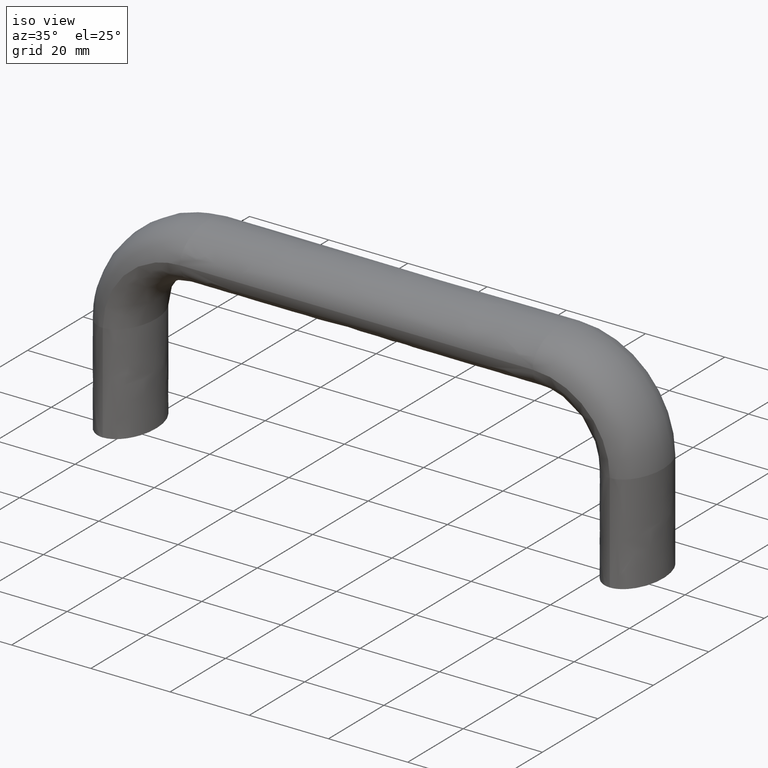
[diagram: clean part render]
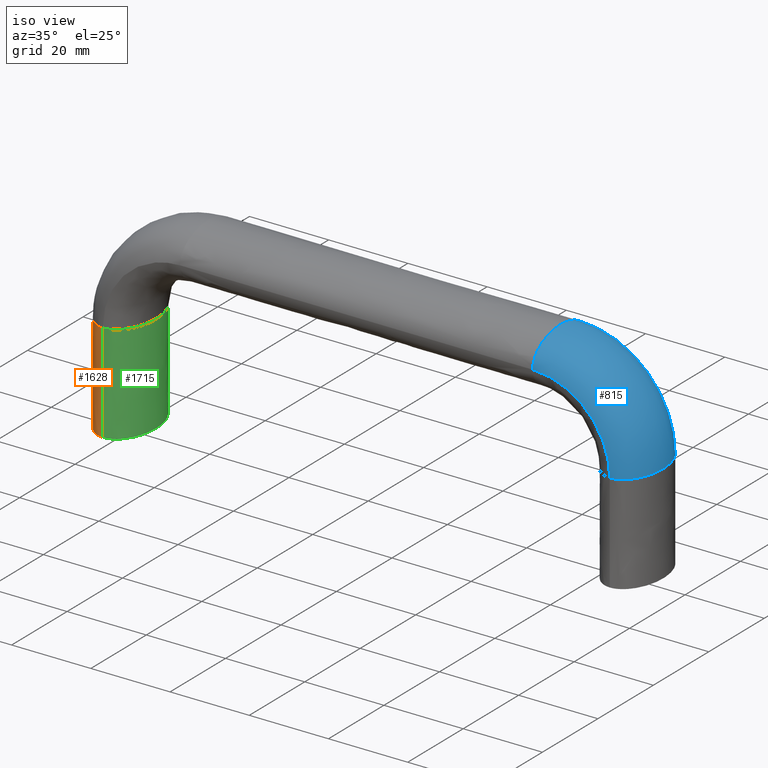
[diagram: same view with three faces highlighted in distinct colors, each labeled with its STEP entity id]
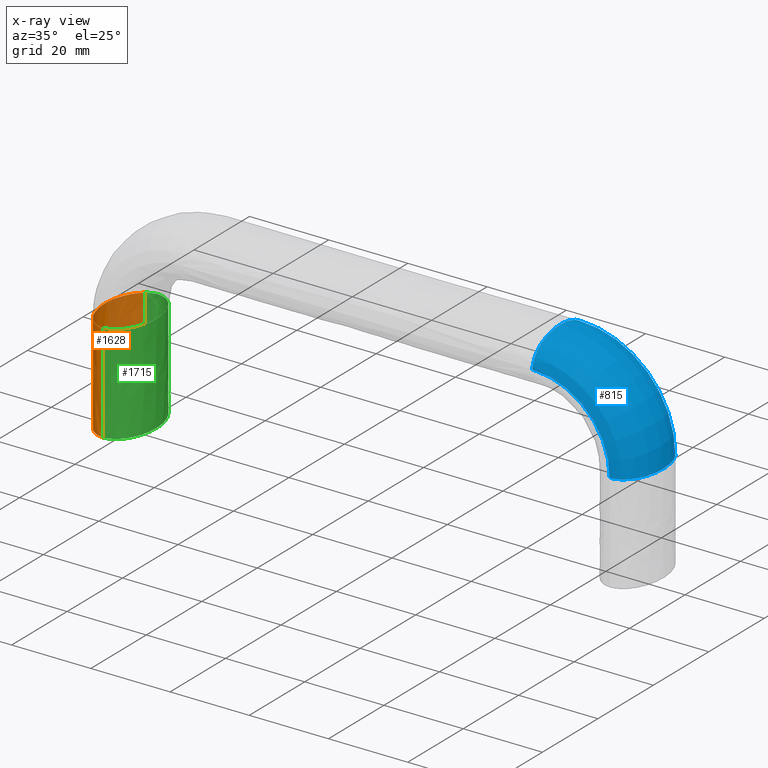
[diagram: x-ray of the same camera — body ghosted, the three highlighted faces saturated]
A machine part, iso view with three faces highlighted in distinct colors.
The next image is the same camera in x-ray (body ghosted, the three faces saturated) — at least one of them is partly hidden behind the body in this view.
Their STEP definitions:

[orange] entity #1628 — the highlighted face is a freeform B-spline surface patch.
#1406=CARTESIAN_POINT('',(-2.765141685643417,9.039503756692852,25.0));
#1407=VERTEX_POINT('',#1406);
#1415=CARTESIAN_POINT('',(3.747003E-014,-10.0,25.0));
#1416=VERTEX_POINT('',#1415);
#1417=CARTESIAN_POINT('',(-2.765141685643417,9.039503756692852,25.0));
#1418=CARTESIAN_POINT('',(-3.442842478045029,8.550381046452003,25.0));
#1419=CARTESIAN_POINT('',(-4.066750527716681,7.885596350320673,25.0));
#1420=CARTESIAN_POINT('',(-5.799474873463780,5.219866587632820,25.0));
#1421=CARTESIAN_POINT('',(-6.500000000000000,2.617993877991495,25.0));
#1422=CARTESIAN_POINT('',(-6.500000000000000,-2.617993877991495,25.0));
#1423=CARTESIAN_POINT('',(-5.799474873463780,-5.219866587632820,25.0));
#1424=CARTESIAN_POINT('',(-3.392913281961335,-8.922269036098131,25.0));
#1425=CARTESIAN_POINT('',(-1.701696020694470,-10.0,25.0));
#1426=CARTESIAN_POINT('',(0.0,-10.0,25.0));
#1427=B_SPLINE_CURVE_WITH_KNOTS('',3,(#1417,#1418,#1419,#1420,#1421,#1422,#1423,#1424,#1425,#1426),.UNSPECIFIED.,.F.,.U.,(4,2,2,2,4),(0.570000000013989,0.625000000000000,0.750000000000000,0.875000000000000,1.0),.UNSPECIFIED.);
#1428=EDGE_CURVE('',#1407,#1416,#1427,.T.);
#1548=CARTESIAN_POINT('',(-2.765141685384861,9.039503756879462,0.0));
#1549=CARTESIAN_POINT('',(-3.442842477727653,8.550381046790173,0.0));
#1550=CARTESIAN_POINT('',(-4.066750527582020,7.885596350527845,0.0));
#1551=CARTESIAN_POINT('',(-5.799474873463780,5.219866587632820,0.0));
#1552=CARTESIAN_POINT('',(-6.500000000000000,2.617993877991495,0.0));
#1553=CARTESIAN_POINT('',(-6.500000000000000,-2.617993877991495,0.0));
#1554=CARTESIAN_POINT('',(-5.799474873463780,-5.219866587632820,0.0));
#1555=CARTESIAN_POINT('',(-3.392913281961335,-8.922269036098131,0.0));
#1556=CARTESIAN_POINT('',(-1.701696020694470,-10.0,0.0));
#1557=CARTESIAN_POINT('',(0.0,-10.0,0.0));
#1558=CARTESIAN_POINT('',(-2.765141685384861,9.039503756879462,8.333333330654043));
#1559=CARTESIAN_POINT('',(-3.442842477727653,8.550381046790173,8.333333330577220));
#1560=CARTESIAN_POINT('',(-4.066750527582020,7.885596350527845,8.333333330508420));
#1561=CARTESIAN_POINT('',(-5.799474873463780,5.219866587632820,8.333333330322889));
#1562=CARTESIAN_POINT('',(-6.500000000000000,2.617993877991495,8.333333330251030));
#1563=CARTESIAN_POINT('',(-6.500000000000000,-2.617993877991495,8.333333330251030));
#1564=CARTESIAN_POINT('',(-5.799474873463780,-5.219866587632820,8.333333330322889));
#1565=CARTESIAN_POINT('',(-3.392913281961335,-8.922269036098131,8.333333330580571));
#1566=CARTESIAN_POINT('',(-1.701696020694470,-10.0,8.333333330771970));
#1567=CARTESIAN_POINT('',(0.0,-10.0,8.333333330977913));
#1568=CARTESIAN_POINT('',(-2.765255463481482,9.039503756879462,16.666666670234068));
#1569=CARTESIAN_POINT('',(-3.442957903478828,8.550381046790173,16.666666670336362));
#1570=CARTESIAN_POINT('',(-4.066867394460879,7.885596350527845,16.666666670427968));
#1571=CARTESIAN_POINT('',(-5.799595541806690,5.219866587632820,16.666666670674999));
#1572=CARTESIAN_POINT('',(-6.500122100290400,2.617993877991495,16.666666670770649));
#1573=CARTESIAN_POINT('',(-6.500122100290400,-2.617993877991495,16.666666670770649));
#1574=CARTESIAN_POINT('',(-5.799595541806690,-5.219866587632820,16.666666670674999));
#1575=CARTESIAN_POINT('',(-3.393028670493060,-8.922269036098131,16.666666670331900));
#1576=CARTESIAN_POINT('',(-1.701807325264690,-10.0,16.666666670077049));
#1577=CARTESIAN_POINT('',(-0.000106634018478,-10.0,16.666666669802851));
#1578=CARTESIAN_POINT('',(-2.765141685384861,9.039503756879462,25.0));
#1579=CARTESIAN_POINT('',(-3.442842477727653,8.550381046790173,25.0));
#1580=CARTESIAN_POINT('',(-4.066750527582020,7.885596350527845,25.0));
#1581=CARTESIAN_POINT('',(-5.799474873463780,5.219866587632820,25.0));
#1582=CARTESIAN_POINT('',(-6.500000000000000,2.617993877991495,25.0));
#1583=CARTESIAN_POINT('',(-6.500000000000000,-2.617993877991495,25.0));
#1584=CARTESIAN_POINT('',(-5.799474873463780,-5.219866587632820,25.0));
#1585=CARTESIAN_POINT('',(-3.392913281961335,-8.922269036098131,25.0));
#1586=CARTESIAN_POINT('',(-1.701696020694470,-10.0,25.0));
#1587=CARTESIAN_POINT('',(0.0,-10.0,25.0));
#1588=B_SPLINE_SURFACE_WITH_KNOTS('',3,3,((#1548,#1558,#1568,#1578),(#1549,#1559,#1569,#1579),(#1550,#1560,#1570,#1580),(#1551,#1561,#1571,#1581),(#1552,#1562,#1572,#1582),(#1553,#1563,#1573,#1583),(#1554,#1564,#1574,#1584),(#1555,#1565,#1575,#1585),(#1556,#1566,#1576,#1586),(#1557,#1567,#1577,#1587)),.UNSPECIFIED.,.F.,.F.,.U.,(4,2,2,2,4),(4,4),(0.0,3.385193623603746,11.078815495430430,18.772437367257119,26.466059239083808),(0.0,25.000000004368712),.UNSPECIFIED.);
#1589=ORIENTED_EDGE('',*,*,#1428,.F.);
#1590=CARTESIAN_POINT('',(-2.767718893953111,9.043070625830358,0.0));
#1591=VERTEX_POINT('',#1590);
#1592=CARTESIAN_POINT('',(-2.767718893953111,9.043070625830358,0.0));
#1593=CARTESIAN_POINT('',(-2.766859824516823,9.041881669451572,8.333333330654044));
#1594=CARTESIAN_POINT('',(-2.766114533176235,9.040692713071511,16.666666670234068));
#1595=CARTESIAN_POINT('',(-2.765141685643417,9.039503756692852,25.0));
#1596=B_SPLINE_CURVE_WITH_KNOTS('',3,(#1592,#1593,#1594,#1595),.UNSPECIFIED.,.F.,.U.,(4,4),(0.0,0.124837047863849),.UNSPECIFIED.);
#1597=EDGE_CURVE('',#1591,#1407,#1596,.T.);
#1598=ORIENTED_EDGE('',*,*,#1597,.F.);
#1599=CARTESIAN_POINT('',(3.252607E-016,-10.0,0.0));
#1600=VERTEX_POINT('',#1599);
#1601=CARTESIAN_POINT('',(-2.767718893953111,9.043070625830358,0.0));
#1602=CARTESIAN_POINT('',(-3.789574659081554,8.304902883637121,0.0));
#1603=CARTESIAN_POINT('',(-4.593843456444844,7.067814539892346,0.0));
#1604=CARTESIAN_POINT('',(-5.508528250208879,5.660889516472645,0.0));
#1605=CARTESIAN_POINT('',(-6.003269068346328,3.824138429711756,0.0));
#1606=CARTESIAN_POINT('',(-6.498383111718050,1.986001724805870,0.0));
#1607=CARTESIAN_POINT('',(-6.498549654176593,-0.002007286109192,0.0));
#1608=CARTESIAN_POINT('',(-6.498716322272312,-1.991516021929436,0.0));
#1609=CARTESIAN_POINT('',(-6.004283234472674,-3.828126606434021,0.0));
#1610=CARTESIAN_POINT('',(-5.509477153587659,-5.666122703084635,0.0));
#1611=CARTESIAN_POINT('',(-4.595717391098237,-7.071727548601292,0.0));
#1612=CARTESIAN_POINT('',(-3.681268301609613,-8.478392761853586,0.0));
#1613=CARTESIAN_POINT('',(-2.487293505025882,-9.239001272481852,0.0));
#1614=CARTESIAN_POINT('',(-1.292964223232608,-9.999835604013512,0.0));
#1615=CARTESIAN_POINT('',(3.252607E-016,-10.0,0.0));
#1616=B_SPLINE_CURVE_WITH_KNOTS('',2,(#1601,#1602,#1603,#1604,#1605,#1606,#1607,#1608,#1609,#1610,#1611,#1612,#1613,#1614,#1615),.UNSPECIFIED.,.F.,.U.,(3,2,2,2,2,2,2,3),(0.140006435623409,0.250000000000000,0.375000000000000,0.500000000000000,0.625000000000000,0.750000000000000,0.875000000000000,1.0),.UNSPECIFIED.);
#1617=EDGE_CURVE('',#1591,#1600,#1616,.T.);
#1618=ORIENTED_EDGE('',*,*,#1617,.T.);
#1619=CARTESIAN_POINT('',(0.0,-10.0,0.0));
#1620=CARTESIAN_POINT('',(0.0,-10.0,8.333333330977913));
#1621=CARTESIAN_POINT('',(-0.000106634018477,-10.0,16.666666669802851));
#1622=CARTESIAN_POINT('',(0.0,-10.0,25.0));
#1623=B_SPLINE_CURVE_WITH_KNOTS('',3,(#1619,#1620,#1621,#1622),.UNSPECIFIED.,.F.,.U.,(4,4),(0.0,0.124837047863849),.UNSPECIFIED.);
#1624=EDGE_CURVE('',#1600,#1416,#1623,.T.);
#1625=ORIENTED_EDGE('',*,*,#1624,.T.);
#1626=EDGE_LOOP('',(#1589,#1598,#1618,#1625));
#1627=FACE_OUTER_BOUND('',#1626,.T.);
#1628=ADVANCED_FACE('',(#1627),#1588,.T.);

[blue] entity #815 — the highlighted face is a freeform B-spline surface patch.
#457=CARTESIAN_POINT('',(130.765148685643200,9.039503756692850,25.0));
#458=VERTEX_POINT('',#457);
#459=CARTESIAN_POINT('',(128.000006999999810,-10.0,25.0));
#460=VERTEX_POINT('',#459);
#461=CARTESIAN_POINT('',(130.765148685643200,9.039503756692850,25.0));
#462=CARTESIAN_POINT('',(131.442849478044910,8.550381046451999,25.0));
#463=CARTESIAN_POINT('',(132.066757527716500,7.885596350320671,25.0));
#464=CARTESIAN_POINT('',(133.799481873463610,5.219866587632820,25.0));
#465=CARTESIAN_POINT('',(134.500007000000010,2.617993877991495,25.0));
#466=CARTESIAN_POINT('',(134.500007000000010,-2.617993877991495,25.0));
#467=CARTESIAN_POINT('',(133.799481873463610,-5.219866587632820,25.0));
#468=CARTESIAN_POINT('',(131.392920281961210,-8.922269036098131,25.0));
#469=CARTESIAN_POINT('',(129.701703020694200,-10.0,25.0));
#470=CARTESIAN_POINT('',(128.000006999999810,-10.0,25.0));
#471=B_SPLINE_CURVE_WITH_KNOTS('',3,(#461,#462,#463,#464,#465,#466,#467,#468,#469,#470),.UNSPECIFIED.,.F.,.U.,(4,2,2,2,4),(0.570000000013989,0.625000000000000,0.750000000000000,0.875000000000000,1.0),.UNSPECIFIED.);
#472=EDGE_CURVE('',#458,#460,#471,.T.);
#562=CARTESIAN_POINT('',(128.000006999999810,10.0,25.0));
#563=VERTEX_POINT('',#562);
#564=CARTESIAN_POINT('',(128.000006999999810,10.0,25.0));
#565=CARTESIAN_POINT('',(128.952956771779100,10.0,25.0));
#566=CARTESIAN_POINT('',(129.902620404600700,9.662023569585280,25.0));
#567=CARTESIAN_POINT('',(130.765148685643200,9.039503756692850,25.0));
#568=B_SPLINE_CURVE_WITH_KNOTS('',3,(#564,#565,#566,#567),.UNSPECIFIED.,.F.,.U.,(4,4),(0.500000000000000,0.570000000013990),.UNSPECIFIED.);
#569=EDGE_CURVE('',#563,#458,#568,.T.);
#603=CARTESIAN_POINT('',(124.870789612510190,8.755444309227862,25.0));
#604=VERTEX_POINT('',#603);
#618=CARTESIAN_POINT('',(124.870789612510190,8.755444309227862,25.0));
#619=CARTESIAN_POINT('',(125.826128193000600,9.558561397034485,25.0));
#620=CARTESIAN_POINT('',(126.910921546568700,10.0,25.0));
#621=CARTESIAN_POINT('',(128.000006999999810,10.0,25.0));
#622=B_SPLINE_CURVE_WITH_KNOTS('',3,(#618,#619,#620,#621),.UNSPECIFIED.,.F.,.U.,(4,4),(0.419999999986289,0.500000000000000),.UNSPECIFIED.);
#623=EDGE_CURVE('',#604,#563,#622,.T.);
#628=CARTESIAN_POINT('',(108.500007000000000,8.755444309434322,41.370790612755883));
#629=CARTESIAN_POINT('',(108.500007000000000,9.558561397185795,42.326129193372502));
#630=CARTESIAN_POINT('',(108.500007000000000,10.0,43.410922546755401));
#631=CARTESIAN_POINT('',(108.500007000000000,10.0,46.201704020694301));
#632=CARTESIAN_POINT('',(108.500007000000000,8.922269036098131,47.892921281961200));
#633=CARTESIAN_POINT('',(108.500007000000000,5.219866587632820,50.299482873463603));
#634=CARTESIAN_POINT('',(108.500007000000000,2.617993877991495,51.000007999999902));
#635=CARTESIAN_POINT('',(108.500007000000000,-2.617993877991495,51.000007999999902));
#636=CARTESIAN_POINT('',(108.500007000000000,-5.219866587632820,50.299482873463603));
#637=CARTESIAN_POINT('',(108.500007000000000,-8.922269036098131,47.892921281961200));
#638=CARTESIAN_POINT('',(108.500007000000000,-10.0,46.201704020694301));
#639=CARTESIAN_POINT('',(108.500007000000000,-10.0,44.500007999999852));
#640=CARTESIAN_POINT('',(110.643237786038500,8.755444309434322,41.361462487404737));
#641=CARTESIAN_POINT('',(110.768311226766600,9.558561397185795,42.316505935076087));
#642=CARTESIAN_POINT('',(110.910333084833000,10.0,43.400986049985583));
#643=CARTESIAN_POINT('',(111.275704385608410,10.0,46.191028352413603));
#644=CARTESIAN_POINT('',(111.497120124804000,8.922269036098131,47.881850823062599));
#645=CARTESIAN_POINT('',(111.812189611127810,5.219866587632820,50.287901282744599));
#646=CARTESIAN_POINT('',(111.903903107425190,2.617993877991495,50.988287623581812));
#647=CARTESIAN_POINT('',(111.903903107425190,-2.617993877991495,50.988287623581812));
#648=CARTESIAN_POINT('',(111.812189611127810,-5.219866587632820,50.287901282744599));
#649=CARTESIAN_POINT('',(111.497120124804000,-8.922269036098131,47.881850823053000));
#650=CARTESIAN_POINT('',(111.275704385608410,-10.0,46.191028352413603));
#651=CARTESIAN_POINT('',(111.052917007086800,-10.0,44.489783046055052));
#652=CARTESIAN_POINT('',(112.785024816611100,8.755444309434322,40.944694918080380));
#653=CARTESIAN_POINT('',(113.035082674914190,9.558561397185795,41.875168590091583));
#654=CARTESIAN_POINT('',(113.319025046922310,10.0,42.931727673305332));
#655=CARTESIAN_POINT('',(114.049506210898000,10.0,45.649872568246998));
#656=CARTESIAN_POINT('',(114.492178761621200,8.922269036098131,47.297071966642797));
#657=CARTESIAN_POINT('',(115.122091181823190,5.219866587632820,49.640997195244097));
#658=CARTESIAN_POINT('',(115.305452156013800,2.617993877991495,50.323289525999797));
#659=CARTESIAN_POINT('',(115.305452156013800,-2.617993877991495,50.323289525999797));
#660=CARTESIAN_POINT('',(115.122091181823190,-5.219866587632820,49.640997195244097));
#661=CARTESIAN_POINT('',(114.492178761621200,-8.922269036098131,47.297071966642797));
#662=CARTESIAN_POINT('',(114.049506210898000,-10.0,45.649872568246998));
#663=CARTESIAN_POINT('',(113.604090867010400,-10.0,43.992467144502079));
#664=CARTESIAN_POINT('',(116.744643744892600,8.755444309434322,39.304567056153523));
#665=CARTESIAN_POINT('',(117.225770380791800,9.558561397185795,40.139328906642490));
#666=CARTESIAN_POINT('',(117.772092896542700,10.0,41.087206575818250));
#667=CARTESIAN_POINT('',(119.177583399422800,10.0,43.525753447844252));
#668=CARTESIAN_POINT('',(120.029312501532600,8.922269036098131,45.003516074876998));
#669=CARTESIAN_POINT('',(121.241302581399000,5.219866587632820,47.106336842509513));
#670=CARTESIAN_POINT('',(121.594100326970210,2.617993877991495,47.718446164587199));
#671=CARTESIAN_POINT('',(121.594100326970210,-2.617993877991495,47.718446164587199));
#672=CARTESIAN_POINT('',(121.241302581399000,-5.219866587632820,47.106336842509513));
#673=CARTESIAN_POINT('',(120.029312501532600,-8.922269036098131,45.003516074876998));
#674=CARTESIAN_POINT('',(119.177583399422800,-10.0,43.525753447844252));
#675=CARTESIAN_POINT('',(118.320576995227600,-10.0,42.038834623438163));
#676=CARTESIAN_POINT('',(118.560617836546900,8.755444309434322,38.091171961062983));
#677=CARTESIAN_POINT('',(119.147718032307790,9.558561397185795,38.855124542666474));
#678=CARTESIAN_POINT('',(119.814374234678790,10.0,39.722597813020208));
#679=CARTESIAN_POINT('',(121.529439849049990,10.0,41.954293208727499));
#680=CARTESIAN_POINT('',(122.568771877825000,8.922269036098131,43.306703567755797));
#681=CARTESIAN_POINT('',(124.047716421851600,5.219866587632820,45.231151065126902));
#682=CARTESIAN_POINT('',(124.478221843971990,2.617993877991495,45.791337777728302));
#683=CARTESIAN_POINT('',(124.478221843971990,-2.617993877991495,45.791337777728302));
#684=CARTESIAN_POINT('',(124.047716421851600,-5.219866587632820,45.231151065126902));
#685=CARTESIAN_POINT('',(122.568771877807190,-8.922269036098131,43.306703567755797));
#686=CARTESIAN_POINT('',(121.529439849049990,-10.0,41.954293208727499));
#687=CARTESIAN_POINT('',(120.483668132970000,-10.0,40.593503333296233));
#688=CARTESIAN_POINT('',(121.591178961074110,8.755444309434322,35.060610836557963));
#689=CARTESIAN_POINT('',(122.355131542679500,9.558561397185795,35.647711032320750));
#690=CARTESIAN_POINT('',(123.222604813034910,10.0,36.314367234693300));
#691=CARTESIAN_POINT('',(125.454300208727600,10.0,38.029432849049947));
#692=CARTESIAN_POINT('',(126.806710567756000,8.922269036098131,39.068764877824698));
#693=CARTESIAN_POINT('',(128.731158065118190,5.219866587632820,40.547709421842548));
#694=CARTESIAN_POINT('',(129.291344777728400,2.617993877991495,40.978214843971763));
#695=CARTESIAN_POINT('',(129.291344777728400,-2.617993877991495,40.978214843971763));
#696=CARTESIAN_POINT('',(128.731158065118190,-5.219866587632820,40.547709421842548));
#697=CARTESIAN_POINT('',(126.806710567773610,-8.922269036098131,39.068764877824698));
#698=CARTESIAN_POINT('',(125.454300208727600,-10.0,38.029432849049947));
#699=CARTESIAN_POINT('',(124.093510333305200,-10.0,36.983661132978817));
#700=CARTESIAN_POINT('',(122.804574056211100,8.755444309434322,33.244636744786739));
#701=CARTESIAN_POINT('',(123.639335906701310,9.558561397185795,33.725763380683070));
#702=CARTESIAN_POINT('',(124.587213575877600,10.0,34.272085896433637));
#703=CARTESIAN_POINT('',(127.025760447932600,10.0,35.677576399299248));
#704=CARTESIAN_POINT('',(128.503523074956410,8.922269036098131,36.529305501418051));
#705=CARTESIAN_POINT('',(130.606343842562410,5.219866587632820,37.741295581257752));
#706=CARTESIAN_POINT('',(131.218453164631200,2.617993877991495,38.094093326811297));
#707=CARTESIAN_POINT('',(131.218453164631200,-2.617993877991495,38.094093326811297));
#708=CARTESIAN_POINT('',(130.606343842562410,-5.219866587632820,37.741295581257752));
#709=CARTESIAN_POINT('',(128.503523074956410,-8.922269036098131,36.529305501418051));
#710=CARTESIAN_POINT('',(127.025760447897200,-10.0,35.677576399299248));
#711=CARTESIAN_POINT('',(125.538841623491090,-10.0,34.820569995112912));
#712=CARTESIAN_POINT('',(124.444701918022200,8.755444309434322,29.285017816717879));
#713=CARTESIAN_POINT('',(125.375175590032200,9.558561397185795,29.535075675023869));
#714=CARTESIAN_POINT('',(126.431734673245600,10.0,29.819018047032110));
#715=CARTESIAN_POINT('',(129.149879568158210,10.0,30.549499211022251));
#716=CARTESIAN_POINT('',(130.797078966562990,8.922269036098131,30.992171761736849));
#717=CARTESIAN_POINT('',(133.141004195190590,5.219866587632820,31.622084181965501));
#718=CARTESIAN_POINT('',(133.823296525955190,2.617993877991495,31.805445156173700));
#719=CARTESIAN_POINT('',(133.823296525955190,-2.617993877991495,31.805445156173700));
#720=CARTESIAN_POINT('',(133.141004195190590,-5.219866587632820,31.622084181965501));
#721=CARTESIAN_POINT('',(130.797078966562990,-8.922269036098131,30.992171761736849));
#722=CARTESIAN_POINT('',(129.149879568193600,-10.0,30.549499211022251));
#723=CARTESIAN_POINT('',(127.492474144448710,-10.0,30.104083867125830));
#724=CARTESIAN_POINT('',(124.870764474806090,8.755444309434322,27.143280771262599));
#725=CARTESIAN_POINT('',(125.826100787056010,9.558561397185795,27.268354742729802));
#726=CARTESIAN_POINT('',(126.910891494318510,10.0,27.410377074515750));
#727=CARTESIAN_POINT('',(129.701665946343410,10.0,27.775749235925701));
#728=CARTESIAN_POINT('',(131.392878781409590,8.922269036098131,27.997165248423698));
#729=CARTESIAN_POINT('',(133.799433911713210,5.219866587632820,28.312234922407551));
#730=CARTESIAN_POINT('',(134.499957125285590,2.617993877991495,28.403948437624699));
#731=CARTESIAN_POINT('',(134.499957125285590,-2.617993877991495,28.403948437624699));
#732=CARTESIAN_POINT('',(133.799433911713210,-5.219866587632820,28.312234922407551));
#733=CARTESIAN_POINT('',(131.392878781409590,-8.922269036098131,27.997165248423698));
#734=CARTESIAN_POINT('',(129.701665946343410,-10.0,27.775749235925701));
#735=CARTESIAN_POINT('',(127.999974207303790,-10.0,27.552961332626950));
#736=CARTESIAN_POINT('',(124.870789612755800,8.755444309434322,25.0));
#737=CARTESIAN_POINT('',(125.826128193372400,9.558561397185795,25.0));
#738=CARTESIAN_POINT('',(126.910921546755400,10.0,25.0));
#739=CARTESIAN_POINT('',(129.701703020694200,10.0,25.0));
#740=CARTESIAN_POINT('',(131.392920281961210,8.922269036098131,25.0));
#741=CARTESIAN_POINT('',(133.799481873463610,5.219866587632820,25.0));
#742=CARTESIAN_POINT('',(134.500007000000010,2.617993877991495,25.0));
#743=CARTESIAN_POINT('',(134.500007000000010,-2.617993877991495,25.0));
#744=CARTESIAN_POINT('',(133.799481873463610,-5.219866587632820,25.0));
#745=CARTESIAN_POINT('',(131.392920281961210,-8.922269036098131,25.0));
#746=CARTESIAN_POINT('',(129.701703020694200,-10.0,25.0));
#747=CARTESIAN_POINT('',(128.000006999999810,-10.0,25.0));
#748=B_SPLINE_SURFACE_WITH_KNOTS('',3,3,((#628,#640,#652,#664,#676,#688,#700,#712,#724,#736),(#629,#641,#653,#665,#677,#689,#701,#713,#725,#737),(#630,#642,#654,#666,#678,#690,#702,#714,#726,#738),(#631,#643,#655,#667,#679,#691,#703,#715,#727,#739),(#632,#644,#656,#668,#680,#692,#704,#716,#728,#740),(#633,#645,#657,#669,#681,#693,#705,#717,#729,#741),(#634,#646,#658,#670,#682,#694,#706,#718,#730,#742),(#635,#647,#659,#671,#683,#695,#707,#719,#731,#743),(#636,#648,#660,#672,#684,#696,#708,#720,#732,#744),(#637,#649,#661,#673,#685,#697,#709,#721,#733,#745),(#638,#650,#662,#674,#686,#698,#710,#722,#734,#746),(#639,#651,#663,#675,#687,#699,#711,#723,#735,#747)),.UNSPECIFIED.,.F.,.F.,.U.,(4,2,2,2,2,4),(4,2,2,2,4),(0.0,4.923917860288095,12.617539516988240,20.311161173688390,28.004782830388539,35.698404487088688),(0.0,10.123008709118061,20.246017418236121,30.369026127354442,40.492034836472527),.UNSPECIFIED.);
#749=ORIENTED_EDGE('',*,*,#623,.F.);
#750=CARTESIAN_POINT('',(108.500007000000000,8.755444309227858,41.370790612510277));
#751=VERTEX_POINT('',#750);
#752=CARTESIAN_POINT('',(108.500007000000000,8.755444309227858,41.370790612510277));
#753=CARTESIAN_POINT('',(110.643237786038500,8.755444309434322,41.361462487404737));
#754=CARTESIAN_POINT('',(112.785024816611100,8.755444309434322,40.944694918080380));
#755=CARTESIAN_POINT('',(116.744643744892600,8.755444309434322,39.304567056153523));
#756=CARTESIAN_POINT('',(118.560617836546900,8.755444309434322,38.091171961062983));
#757=CARTESIAN_POINT('',(121.591178961074110,8.755444309434322,35.060610836557963));
#758=CARTESIAN_POINT('',(122.804574056211100,8.755444309434322,33.244636744786739));
#759=CARTESIAN_POINT('',(124.444701918022200,8.755444309434322,29.285017816717879));
#760=CARTESIAN_POINT('',(124.870764474806090,8.755444309434322,27.143280771262599));
#761=CARTESIAN_POINT('',(124.870789612510190,8.755444309227862,25.0));
#762=B_SPLINE_CURVE_WITH_KNOTS('',3,(#752,#753,#754,#755,#756,#757,#758,#759,#760,#761),.UNSPECIFIED.,.F.,.U.,(4,2,2,2,4),(0.722209962674838,0.760448210040166,0.798686457405494,0.836924704770823,0.875162952136151),.UNSPECIFIED.);
#763=EDGE_CURVE('',#751,#604,#762,.T.);
#764=ORIENTED_EDGE('',*,*,#763,.F.);
#765=CARTESIAN_POINT('',(108.500007000000000,10.0,44.500007999999852));
#766=VERTEX_POINT('',#765);
#767=CARTESIAN_POINT('',(108.500007000000000,8.755444309227858,41.370790612510277));
#768=CARTESIAN_POINT('',(108.500007000000000,9.558561397034483,42.326129193000668));
#769=CARTESIAN_POINT('',(108.500007000000000,10.0,43.410922546568749));
#770=CARTESIAN_POINT('',(108.500007000000000,10.0,44.500007999999852));
#771=B_SPLINE_CURVE_WITH_KNOTS('',3,(#767,#768,#769,#770),.UNSPECIFIED.,.F.,.U.,(4,4),(0.419999999986289,0.500000000000000),.UNSPECIFIED.);
#772=EDGE_CURVE('',#751,#766,#771,.T.);
#773=ORIENTED_EDGE('',*,*,#772,.T.);
#774=CARTESIAN_POINT('',(108.500007000000000,9.039503756692849,47.265149685643273));
#775=VERTEX_POINT('',#774);
#776=CARTESIAN_POINT('',(108.500007000000000,10.0,44.500007999999852));
#777=CARTESIAN_POINT('',(108.500007000000000,10.0,45.452957771779197));
#778=CARTESIAN_POINT('',(108.500007000000000,9.662023569585280,46.402621404600751));
#779=CARTESIAN_POINT('',(108.500007000000000,9.039503756692849,47.265149685643273));
#780=B_SPLINE_CURVE_WITH_KNOTS('',3,(#776,#777,#778,#779),.UNSPECIFIED.,.F.,.U.,(4,4),(0.500000000000000,0.570000000013990),.UNSPECIFIED.);
#781=EDGE_CURVE('',#766,#775,#780,.T.);
#782=ORIENTED_EDGE('',*,*,#781,.T.);
#783=CARTESIAN_POINT('',(108.500007000000000,-10.0,44.500007999999852));
#784=VERTEX_POINT('',#783);
#785=CARTESIAN_POINT('',(108.500007000000000,9.039503756692849,47.265149685643273));
#786=CARTESIAN_POINT('',(108.500007000000000,8.550381046451996,47.942850478044889));
#787=CARTESIAN_POINT('',(108.500007000000000,7.885596350320669,48.566758527716537));
#788=CARTESIAN_POINT('',(108.500007000000000,5.219866587632820,50.299482873463603));
#789=CARTESIAN_POINT('',(108.500007000000000,2.617993877991495,51.000007999999902));
#790=CARTESIAN_POINT('',(108.500007000000000,-2.617993877991495,51.000007999999902));
#791=CARTESIAN_POINT('',(108.500007000000000,-5.219866587632820,50.299482873463603));
#792=CARTESIAN_POINT('',(108.500007000000000,-8.922269036098131,47.892921281961200));
#793=CARTESIAN_POINT('',(108.500007000000000,-10.0,46.201704020694301));
#794=CARTESIAN_POINT('',(108.500007000000000,-10.0,44.500007999999852));
#795=B_SPLINE_CURVE_WITH_KNOTS('',3,(#785,#786,#787,#788,#789,#790,#791,#792,#793,#794),.UNSPECIFIED.,.F.,.U.,(4,2,2,2,4),(0.570000000013989,0.625000000000000,0.750000000000000,0.875000000000000,1.0),.UNSPECIFIED.);
#796=EDGE_CURVE('',#775,#784,#795,.T.);
#797=ORIENTED_EDGE('',*,*,#796,.T.);
#798=CARTESIAN_POINT('',(108.500007000000000,-10.0,44.500007999999852));
#799=CARTESIAN_POINT('',(111.052917007086800,-10.0,44.489783046055052));
#800=CARTESIAN_POINT('',(113.604090867010400,-10.0,43.992467144502079));
#801=CARTESIAN_POINT('',(118.320576995227600,-10.0,42.038834623438163));
#802=CARTESIAN_POINT('',(120.483668132970000,-10.0,40.593503333296233));
#803=CARTESIAN_POINT('',(124.093510333305200,-10.0,36.983661132978817));
#804=CARTESIAN_POINT('',(125.538841623491090,-10.0,34.820569995112912));
#805=CARTESIAN_POINT('',(127.492474144448710,-10.0,30.104083867125830));
#806=CARTESIAN_POINT('',(127.999974207303790,-10.0,27.552961332626950));
#807=CARTESIAN_POINT('',(128.000006999999810,-10.0,25.0));
#808=B_SPLINE_CURVE_WITH_KNOTS('',3,(#798,#799,#800,#801,#802,#803,#804,#805,#806,#807),.UNSPECIFIED.,.F.,.U.,(4,2,2,2,4),(0.722209962674838,0.760448210040166,0.798686457405494,0.836924704770823,0.875162952136151),.UNSPECIFIED.);
#809=EDGE_CURVE('',#784,#460,#808,.T.);
#810=ORIENTED_EDGE('',*,*,#809,.T.);
#811=ORIENTED_EDGE('',*,*,#472,.F.);
#812=ORIENTED_EDGE('',*,*,#569,.F.);
#813=EDGE_LOOP('',(#749,#764,#773,#782,#797,#810,#811,#812));
#814=FACE_OUTER_BOUND('',#813,.T.);
#815=ADVANCED_FACE('',(#814),#748,.T.);

[green] entity #1715 — the highlighted face is a freeform B-spline surface patch.
#1382=CARTESIAN_POINT('',(3.129217387489629,8.755444309227849,25.0));
#1383=VERTEX_POINT('',#1382);
#1397=CARTESIAN_POINT('',(0.0,10.0,25.0));
#1398=VERTEX_POINT('',#1397);
#1399=CARTESIAN_POINT('',(3.129217387489629,8.755444309227849,25.0));
#1400=CARTESIAN_POINT('',(2.173878806999225,9.558561397034476,25.0));
#1401=CARTESIAN_POINT('',(1.089085453431123,10.0,25.0));
#1402=CARTESIAN_POINT('',(0.0,10.0,25.0));
#1403=B_SPLINE_CURVE_WITH_KNOTS('',3,(#1399,#1400,#1401,#1402),.UNSPECIFIED.,.F.,.U.,(4,4),(0.419999999986289,0.500000000000000),.UNSPECIFIED.);
#1404=EDGE_CURVE('',#1383,#1398,#1403,.T.);
#1406=CARTESIAN_POINT('',(-2.765141685643417,9.039503756692852,25.0));
#1407=VERTEX_POINT('',#1406);
#1408=CARTESIAN_POINT('',(0.0,10.0,25.0));
#1409=CARTESIAN_POINT('',(-0.952949771779357,10.0,25.0));
#1410=CARTESIAN_POINT('',(-1.902613404600903,9.662023569585280,25.0));
#1411=CARTESIAN_POINT('',(-2.765141685643417,9.039503756692852,25.0));
#1412=B_SPLINE_CURVE_WITH_KNOTS('',3,(#1408,#1409,#1410,#1411),.UNSPECIFIED.,.F.,.U.,(4,4),(0.500000000000000,0.570000000013990),.UNSPECIFIED.);
#1413=EDGE_CURVE('',#1398,#1407,#1412,.T.);
#1415=CARTESIAN_POINT('',(3.747003E-014,-10.0,25.0));
#1416=VERTEX_POINT('',#1415);
#1531=CARTESIAN_POINT('',(0.0,-10.0,25.0));
#1532=CARTESIAN_POINT('',(1.701696020694470,-10.0,25.0));
#1533=CARTESIAN_POINT('',(3.392913281961335,-8.922269036098131,25.0));
#1534=CARTESIAN_POINT('',(5.799474873463780,-5.219866587632820,25.0));
#1535=CARTESIAN_POINT('',(6.500000000000000,-2.617993877991495,25.0));
#1536=CARTESIAN_POINT('',(6.500000000000000,2.617993877991495,25.0));
#1537=CARTESIAN_POINT('',(5.799474873463780,5.219866587632830,25.0));
#1538=CARTESIAN_POINT('',(4.163012991374101,7.737500252386177,25.0));
#1539=CARTESIAN_POINT('',(3.666595339143357,8.303690947229089,25.0));
#1540=CARTESIAN_POINT('',(3.129217387489629,8.755444309227849,25.0));
#1541=B_SPLINE_CURVE_WITH_KNOTS('',3,(#1531,#1532,#1533,#1534,#1535,#1536,#1537,#1538,#1539,#1540),.UNSPECIFIED.,.F.,.U.,(4,2,2,2,4),(0.0,0.125000000000000,0.250000000000000,0.375000000000000,0.419999999986289),.UNSPECIFIED.);
#1542=EDGE_CURVE('',#1416,#1383,#1541,.T.);
#1590=CARTESIAN_POINT('',(-2.767718893953111,9.043070625830358,0.0));
#1591=VERTEX_POINT('',#1590);
#1592=CARTESIAN_POINT('',(-2.767718893953111,9.043070625830358,0.0));
#1593=CARTESIAN_POINT('',(-2.766859824516823,9.041881669451572,8.333333330654044));
#1594=CARTESIAN_POINT('',(-2.766114533176235,9.040692713071511,16.666666670234068));
#1595=CARTESIAN_POINT('',(-2.765141685643417,9.039503756692852,25.0));
#1596=B_SPLINE_CURVE_WITH_KNOTS('',3,(#1592,#1593,#1594,#1595),.UNSPECIFIED.,.F.,.U.,(4,4),(0.0,0.124837047863849),.UNSPECIFIED.);
#1597=EDGE_CURVE('',#1591,#1407,#1596,.T.);
#1599=CARTESIAN_POINT('',(3.252607E-016,-10.0,0.0));
#1600=VERTEX_POINT('',#1599);
#1619=CARTESIAN_POINT('',(0.0,-10.0,0.0));
#1620=CARTESIAN_POINT('',(0.0,-10.0,8.333333330977913));
#1621=CARTESIAN_POINT('',(-0.000106634018477,-10.0,16.666666669802851));
#1622=CARTESIAN_POINT('',(0.0,-10.0,25.0));
#1623=B_SPLINE_CURVE_WITH_KNOTS('',3,(#1619,#1620,#1621,#1622),.UNSPECIFIED.,.F.,.U.,(4,4),(0.0,0.124837047863849),.UNSPECIFIED.);
#1624=EDGE_CURVE('',#1600,#1416,#1623,.T.);
#1629=CARTESIAN_POINT('',(0.0,-10.0,0.0));
#1630=CARTESIAN_POINT('',(1.701696020694470,-10.0,0.0));
#1631=CARTESIAN_POINT('',(3.392913281961335,-8.922269036098131,0.0));
#1632=CARTESIAN_POINT('',(5.799474873463780,-5.219866587632820,0.0));
#1633=CARTESIAN_POINT('',(6.500000000000000,-2.617993877991495,0.0));
#1634=CARTESIAN_POINT('',(6.500000000000000,2.617993877991495,0.0));
#1635=CARTESIAN_POINT('',(5.799474873463780,5.219866587632830,0.0));
#1636=CARTESIAN_POINT('',(3.392913281961330,8.922269036098131,0.0));
#1637=CARTESIAN_POINT('',(1.701696020694470,10.0,0.0));
#1638=CARTESIAN_POINT('',(-0.952949771588903,10.0,0.0));
#1639=CARTESIAN_POINT('',(-1.902613404221309,9.662023569720375,0.0));
#1640=CARTESIAN_POINT('',(-2.765141685384861,9.039503756879462,0.0));
#1641=CARTESIAN_POINT('',(0.0,-10.0,8.333333330977913));
#1642=CARTESIAN_POINT('',(1.701696020694470,-10.0,8.333333331183860));
#1643=CARTESIAN_POINT('',(3.392913281961335,-8.922269036098131,8.333333331401740));
#1644=CARTESIAN_POINT('',(5.799474873463780,-5.219866587632820,8.333333331725880));
#1645=CARTESIAN_POINT('',(6.500000000000000,-2.617993877991495,8.333333331822990));
#1646=CARTESIAN_POINT('',(6.500000000000000,2.617993877991495,8.333333331822990));
#1647=CARTESIAN_POINT('',(5.799474873463780,5.219866587632830,8.333333331725880));
#1648=CARTESIAN_POINT('',(3.392913281961330,8.922269036098131,8.333333331401740));
#1649=CARTESIAN_POINT('',(1.701696020694470,10.0,8.333333331183860));
#1650=CARTESIAN_POINT('',(-0.952949771588903,10.0,8.333333330862585));
#1651=CARTESIAN_POINT('',(-1.902613404221309,9.662023569720375,8.333333330751817));
#1652=CARTESIAN_POINT('',(-2.765141685384861,9.039503756879462,8.333333330654043));
#1653=CARTESIAN_POINT('',(-0.000106634018478,-10.0,16.666666669802851));
#1654=CARTESIAN_POINT('',(1.701594057227735,-10.0,16.666666669528649));
#1655=CARTESIAN_POINT('',(3.392816624426850,-8.922269036098131,16.666666669238548));
#1656=CARTESIAN_POINT('',(5.799386698030220,-5.219866587632820,16.666666668806950));
#1657=CARTESIAN_POINT('',(6.499914529665181,-2.617993877991495,16.666666668677649));
#1658=CARTESIAN_POINT('',(6.499914529665181,2.617993877991495,16.666666668677649));
#1659=CARTESIAN_POINT('',(5.799386698030220,5.219866587632830,16.666666668806950));
#1660=CARTESIAN_POINT('',(3.392816624426850,8.922269036098131,16.666666669238548));
#1661=CARTESIAN_POINT('',(1.701594057227735,10.0,16.666666669528649));
#1662=CARTESIAN_POINT('',(-0.953059021116360,10.0,16.666666669956399));
#1663=CARTESIAN_POINT('',(-1.902725085303044,9.662023569720375,16.666666670103879));
#1664=CARTESIAN_POINT('',(-2.765255463481482,9.039503756879462,16.666666670234068));
#1665=CARTESIAN_POINT('',(0.0,-10.0,25.0));
#1666=CARTESIAN_POINT('',(1.701696020694470,-10.0,25.0));
#1667=CARTESIAN_POINT('',(3.392913281961335,-8.922269036098131,25.0));
#1668=CARTESIAN_POINT('',(5.799474873463780,-5.219866587632820,25.0));
#1669=CARTESIAN_POINT('',(6.500000000000000,-2.617993877991495,25.0));
#1670=CARTESIAN_POINT('',(6.500000000000000,2.617993877991495,25.0));
#1671=CARTESIAN_POINT('',(5.799474873463780,5.219866587632830,25.0));
#1672=CARTESIAN_POINT('',(3.392913281961330,8.922269036098131,25.0));
#1673=CARTESIAN_POINT('',(1.701696020694470,10.0,25.0));
#1674=CARTESIAN_POINT('',(-0.952949771588903,10.0,25.0));
#1675=CARTESIAN_POINT('',(-1.902613404221309,9.662023569720375,25.0));
#1676=CARTESIAN_POINT('',(-2.765141685384861,9.039503756879462,25.0));
#1677=B_SPLINE_SURFACE_WITH_KNOTS('',3,3,((#1629,#1641,#1653,#1665),(#1630,#1642,#1654,#1666),(#1631,#1643,#1655,#1667),(#1632,#1644,#1656,#1668),(#1633,#1645,#1657,#1669),(#1634,#1646,#1658,#1670),(#1635,#1647,#1659,#1671),(#1636,#1648,#1660,#1672),(#1637,#1649,#1661,#1673),(#1638,#1650,#1662,#1674),(#1639,#1651,#1663,#1675),(#1640,#1652,#1664,#1676)),.UNSPECIFIED.,.F.,.F.,.U.,(4,2,2,2,2,4),(4,4),(0.0,7.693622043917650,15.387244087835301,23.080866131752948,30.774488175670601,35.082916520264483),(0.0,25.000000003826319),.UNSPECIFIED.);
#1678=ORIENTED_EDGE('',*,*,#1413,.F.);
#1679=ORIENTED_EDGE('',*,*,#1404,.F.);
#1680=ORIENTED_EDGE('',*,*,#1542,.F.);
#1681=ORIENTED_EDGE('',*,*,#1624,.F.);
#1682=CARTESIAN_POINT('',(-1.301043E-015,10.0,0.0));
#1683=VERTEX_POINT('',#1682);
#1684=CARTESIAN_POINT('',(5.827587E-016,-9.999999999999991,0.0));
#1685=CARTESIAN_POINT('',(1.293495947650843,-9.999801000622920,0.0));
#1686=CARTESIAN_POINT('',(2.487442310373089,-9.238795325112871,0.0));
#1687=CARTESIAN_POINT('',(3.682367494606962,-8.477165761672067,0.0));
#1688=CARTESIAN_POINT('',(4.596194077712559,-7.071067811865456,0.0));
#1689=CARTESIAN_POINT('',(5.510710038218062,-5.663909122344585,0.0));
#1690=CARTESIAN_POINT('',(6.005216961323355,-3.826834323650897,0.0));
#1691=CARTESIAN_POINT('',(6.500096933217217,-1.988373662603977,0.0));
#1692=CARTESIAN_POINT('',(6.500000000000003,-3.672735E-015,0.0));
#1693=CARTESIAN_POINT('',(6.499902993657782,1.989873662604707,0.0));
#1694=CARTESIAN_POINT('',(6.005216961323353,3.826834323650896,0.0));
#1695=CARTESIAN_POINT('',(5.510157745084252,5.665180760941928,0.0));
#1696=CARTESIAN_POINT('',(4.596194077712557,7.071067811865471,0.0));
#1697=CARTESIAN_POINT('',(3.681540929521299,8.478015443412405,0.0));
#1698=CARTESIAN_POINT('',(2.487442310373079,9.238795325112868,0.0));
#1699=CARTESIAN_POINT('',(1.292989169263922,9.999801078589059,0.0));
#1700=CARTESIAN_POINT('',(-1.409463E-015,9.999999999999996,0.0));
#1701=B_SPLINE_CURVE_WITH_KNOTS('',2,(#1684,#1685,#1686,#1687,#1688,#1689,#1690,#1691,#1692,#1693,#1694,#1695,#1696,#1697,#1698,#1699,#1700),.UNSPECIFIED.,.F.,.U.,(3,2,2,2,2,2,2,2,3),(0.0,0.125000000000000,0.250000000000000,0.375000000000000,0.500000000000000,0.625000000000000,0.750000000000000,0.875000000000000,1.0),.UNSPECIFIED.);
#1702=EDGE_CURVE('',#1600,#1683,#1701,.T.);
#1703=ORIENTED_EDGE('',*,*,#1702,.T.);
#1704=CARTESIAN_POINT('',(-1.301043E-015,10.0,0.0));
#1705=CARTESIAN_POINT('',(-1.292419972266786,9.998311845129067,0.0));
#1706=CARTESIAN_POINT('',(-2.485155382817015,9.235630205565570,0.0));
#1707=CARTESIAN_POINT('',(-2.628462429844961,9.143994078540672,0.0));
#1708=CARTESIAN_POINT('',(-2.767718893953111,9.043070625830358,0.0));
#1709=B_SPLINE_CURVE_WITH_KNOTS('',2,(#1704,#1705,#1706,#1707,#1708),.UNSPECIFIED.,.F.,.U.,(3,2,3),(0.0,0.125000000000000,0.140006435623409),.UNSPECIFIED.);
#1710=EDGE_CURVE('',#1683,#1591,#1709,.T.);
#1711=ORIENTED_EDGE('',*,*,#1710,.T.);
#1712=ORIENTED_EDGE('',*,*,#1597,.T.);
#1713=EDGE_LOOP('',(#1678,#1679,#1680,#1681,#1703,#1711,#1712));
#1714=FACE_OUTER_BOUND('',#1713,.T.);
#1715=ADVANCED_FACE('',(#1714),#1677,.T.);